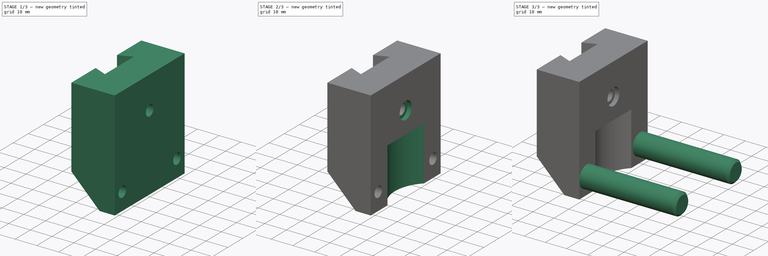
[diagram: build sequence overview — one tinted view per stage of 3, left to right]
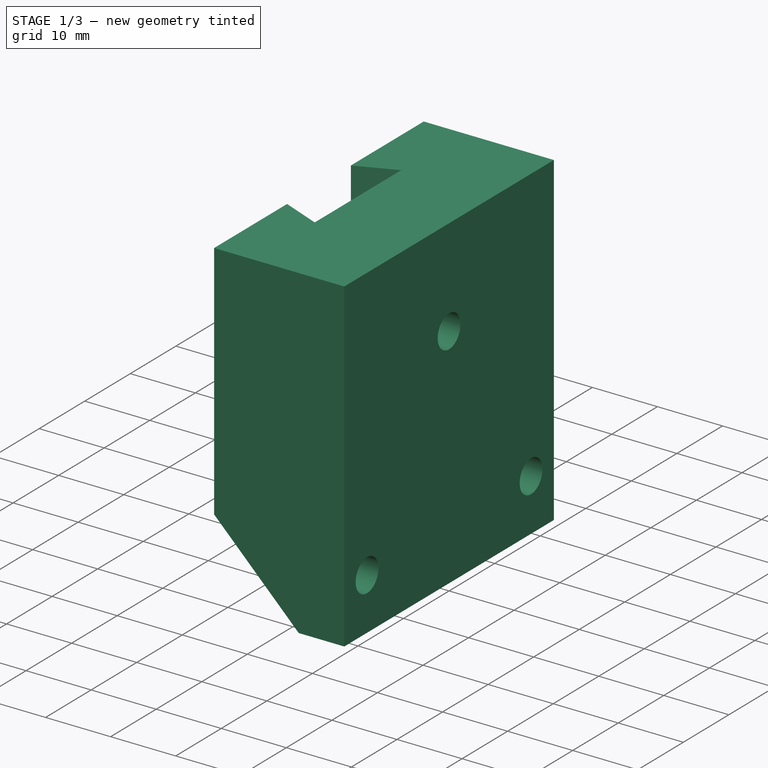
[diagram: stage 1 of 3 — iso view after this stage's code; geometry added in this stage tinted green]
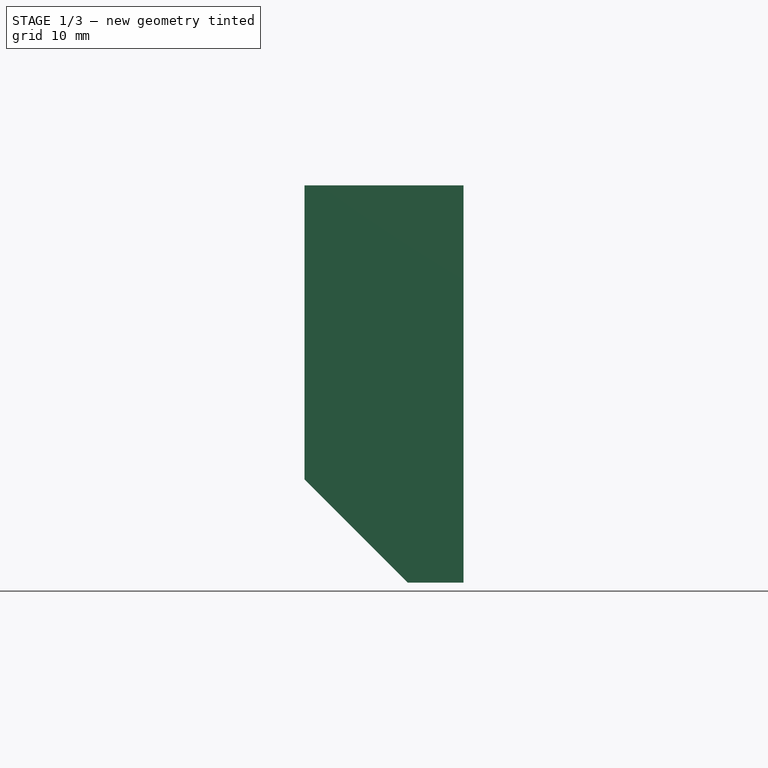
[diagram: stage 1 of 3 — front view after this stage's code; geometry added in this stage tinted green]
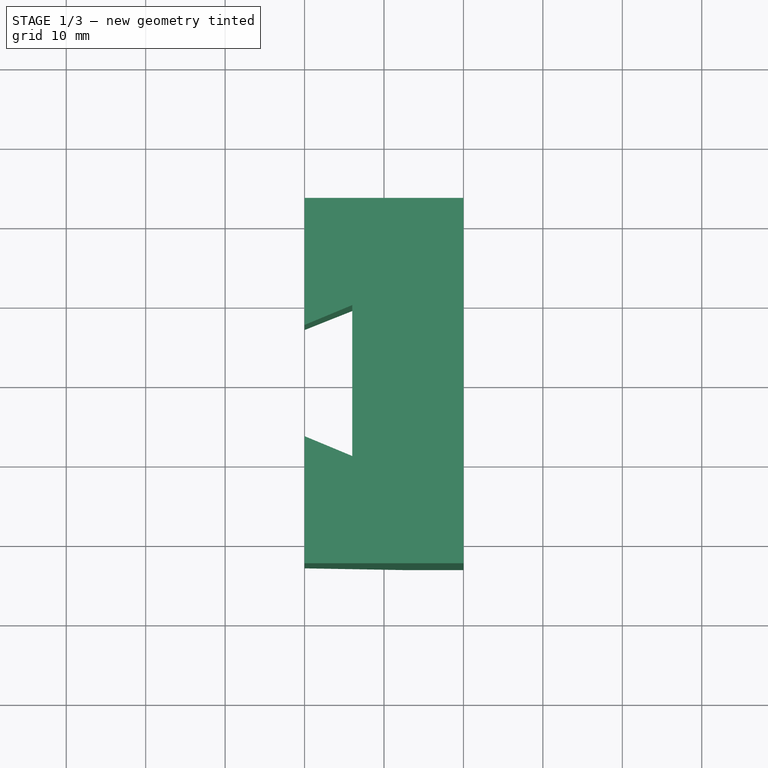
[diagram: stage 1 of 3 — top view after this stage's code; geometry added in this stage tinted green]
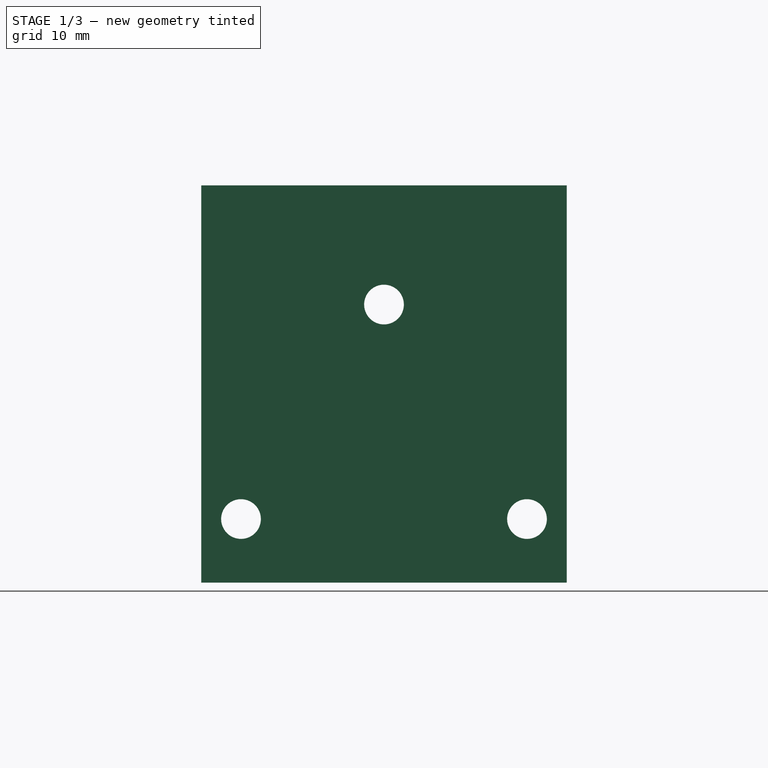
[diagram: stage 1 of 3 — right view after this stage's code; geometry added in this stage tinted green]
FCSTD DOCUMENT  (FreeCAD 0.18R16146 (Git))
Label: SlideBlock
License: All rights reserved
LicenseURL: http://en.wikipedia.org/wiki/All_rights_reserved
objects: Sketcher::SketchObject×10, PartDesign::Pocket×5, PartDesign::Plane×3, PartDesign::Pad×2, PartDesign::Chamfer×1, PartDesign::Body×1
note: 29 computed .brp shape members not serialized (recipe doc carries the construction recipe); baked Part::Feature solids carry a one-line shape summary decoded from their .brp

FEATURE [Sketcher::SketchObject] Sketch  label="MasterXY"
  MapMode = 5
  Support = -> [XY_Plane]
  sketch-geometry (9):
    g0: LineSegment StartX=-10 StartY=23 StartZ=0 EndX=10 EndY=23 EndZ=0
    g1: LineSegment StartX=10 StartY=23 StartZ=0 EndX=10 EndY=-23 EndZ=0
    g2: LineSegment StartX=10 StartY=-23 StartZ=0 EndX=-10 EndY=-23 EndZ=0
    g3: LineSegment StartX=-10 StartY=23 StartZ=0 EndX=-10 EndY=7 EndZ=0
    g4: LineSegment StartX=-10 StartY=7 StartZ=0 EndX=-4 EndY=9.5 EndZ=0
    g5: LineSegment StartX=-4 StartY=9.5 StartZ=0 EndX=-4 EndY=-9.5 EndZ=0
    g6: LineSegment StartX=-4 StartY=-9.5 StartZ=0 EndX=-10 EndY=-7 EndZ=0
    g7: LineSegment StartX=-10 StartY=-7 StartZ=0 EndX=-10 EndY=-23 EndZ=0
    g8: LineSegment [constr] StartX=61.9566 StartY=26.0146 StartZ=0 EndX=61.9566 EndY=-23.9854 EndZ=0
  constraints (22):
    c: Coincident(g0,g1)
    c: Coincident(g1,g2)
    c: Horizontal(g2)
    c: Vertical(g1)
    c: DistanceX(g0,g0) = 20  'Width'
    c: DistanceY(g1,g1) = 46
    c: Symmetric(g0,g2,g-1)
    c: Symmetric(g0,g0,g-2)
    c: Coincident(g3,g0)
    c: Vertical(g3)
    c: Coincident(g3,g4)
    c: Coincident(g4,g5)
    c: Coincident(g5,g6)
    c: Coincident(g6,g7)
    c: Coincident(g7,g2)
    c: Symmetric(g3,g6,g-1)
    c: Symmetric(g4,g5,g-1)
    c: Vertical(g8)
    c: DistanceY(g8,g8) = 50  'Length'
    c: DistanceY(g5,g4) = 19
    c: DistanceY(g6,g3) = 14
    c: DistanceX(g6,g5) = 6
FEATURE [Sketcher::SketchObject] Sketch001
  MapMode = 5
  Support = -> [XY_Plane]
  expr: Constraints[19] = Sketch.Constraints[21]
  expr: Constraints[17] = Sketch.Constraints[19]
  expr: Constraints[18] = Sketch.Constraints[20]
  expr: Constraints[5] = Sketch.Constraints[5]
  expr: Constraints.Width = Sketch.Constraints[4]
  sketch-geometry (8):
    g0: LineSegment StartX=-10 StartY=23 StartZ=0 EndX=10 EndY=23 EndZ=0
    g1: LineSegment StartX=10 StartY=23 StartZ=0 EndX=10 EndY=-23 EndZ=0
    g2: LineSegment StartX=10 StartY=-23 StartZ=0 EndX=-10 EndY=-23 EndZ=0
    g3: LineSegment StartX=-10 StartY=23 StartZ=0 EndX=-10 EndY=7 EndZ=0
    g4: LineSegment StartX=-10 StartY=7 StartZ=0 EndX=-4 EndY=9.5 EndZ=0
    g5: LineSegment StartX=-4 StartY=9.5 StartZ=0 EndX=-4 EndY=-9.5 EndZ=0
    g6: LineSegment StartX=-4 StartY=-9.5 StartZ=0 EndX=-10 EndY=-7 EndZ=0
    g7: LineSegment StartX=-10 StartY=-7 StartZ=0 EndX=-10 EndY=-23 EndZ=0
  constraints (20):
    c: Coincident(g0,g1)
    c: Coincident(g1,g2)
    c: Horizontal(g2)
    c: Vertical(g1)
    c: DistanceX(g0,g0) = 20  'Width'
    c: DistanceY(g1,g1) = 46
    c: Symmetric(g0,g2,g-1)
    c: Symmetric(g0,g0,g-2)
    c: Coincident(g3,g0)
    c: Vertical(g3)
    c: Coincident(g3,g4)
    c: Coincident(g4,g5)
    c: Coincident(g5,g6)
    c: Coincident(g6,g7)
    c: Coincident(g7,g2)
    c: Symmetric(g3,g6,g-1)
    c: Symmetric(g4,g5,g-1)
    c: DistanceY(g5,g4) = 19
    c: DistanceY(g6,g3) = 14
    c: DistanceX(g6,g5) = 6
FEATURE [PartDesign::Pad] Pad
  Length = 50
  Length2 = 100
  Midplane = true
  Profile = -> Sketch001
  Type = 0
  expr: Length = Sketch.Constraints.Length
FEATURE [Sketcher::SketchObject] Sketch002  label="MasterXZ"
  ExternalGeometry = -> [Sketch]
  MapMode = 5
  Placement = pos=(0,0,0) rot=(1,0,0;1.5708rad)
  Support = -> [XZ_Plane]
  sketch-geometry (4):
    g0: LineSegment StartX=-10 StartY=-12 StartZ=0 EndX=-10 EndY=-35.3803 EndZ=0
    g1: LineSegment StartX=-10 StartY=-35.3803 StartZ=0 EndX=13.3803 EndY=-35.3803 EndZ=0
    g2: LineSegment StartX=13.3803 StartY=-35.3803 StartZ=0 EndX=-10 EndY=-12 EndZ=0
    g3: LineSegment [constr] StartX=-10 StartY=-5.1e-15 StartZ=0 EndX=-10 EndY=-12 EndZ=0
  constraints (10):
    c: Vertical(g0)
    c: Coincident(g0,g1)
    c: Horizontal(g1)
    c: Coincident(g1,g2)
    c: Coincident(g2,g0)
    c: Equal(g0,g1)
    c: Vertical(g3)
    c: Coincident(g0,g3)
    c: DistanceY(g3,g3) = 12
    c: Coincident(g3,g-3)
FEATURE [Sketcher::SketchObject] Sketch003
  ExternalGeometry = -> [Sketch]
  MapMode = 5
  Placement = pos=(0,0,0) rot=(1,0,0;1.5708rad)
  Support = -> [XZ_Plane]
  expr: Constraints[8] = Sketch002.Constraints[8]
  sketch-geometry (4):
    g0: LineSegment StartX=-10 StartY=-12 StartZ=0 EndX=-10 EndY=-35.3803 EndZ=0
    g1: LineSegment StartX=-10 StartY=-35.3803 StartZ=0 EndX=13.3803 EndY=-35.3803 EndZ=0
    g2: LineSegment StartX=13.3803 StartY=-35.3803 StartZ=0 EndX=-10 EndY=-12 EndZ=0
    g3: LineSegment [constr] StartX=-10 StartY=-5.1e-15 StartZ=0 EndX=-10 EndY=-12 EndZ=0
  constraints (10):
    c: Vertical(g0)
    c: Coincident(g0,g1)
    c: Horizontal(g1)
    c: Coincident(g1,g2)
    c: Coincident(g2,g0)
    c: Equal(g0,g1)
    c: Vertical(g3)
    c: Coincident(g0,g3)
    c: DistanceY(g3,g3) = 12
    c: Coincident(g3,g-3)
FEATURE [PartDesign::Pocket] Pocket
  BaseFeature = -> Pad
  Length = 5
  Length2 = 100
  Midplane = true
  Profile = -> Sketch003
  Type = 1
FEATURE [Sketcher::SketchObject] Sketch004  label="MasterYZ"
  MapMode = 5
  Placement = pos=(0,0,0) rot=(0.57735,0.57735,0.57735;2.0944rad)
  Support = -> [YZ_Plane]
  sketch-geometry (8):
    g0: Circle CenterX=0 CenterY=10 CenterZ=0 NormalX=0 NormalY=0 NormalZ=1 AngleXU=0 Radius=2.5
    g1: Circle CenterX=18 CenterY=-17 CenterZ=0 NormalX=0 NormalY=0 NormalZ=1 AngleXU=0 Radius=2.5
    g2: Circle CenterX=-18 CenterY=-17 CenterZ=0 NormalX=0 NormalY=0 NormalZ=1 AngleXU=0 Radius=2.5
    g3: Circle CenterX=0 CenterY=10 CenterZ=0 NormalX=0 NormalY=0 NormalZ=1 AngleXU=0 Radius=4
    g4: Circle CenterX=-18 CenterY=-17 CenterZ=0 NormalX=0 NormalY=0 NormalZ=1 AngleXU=0 Radius=4
    g5: Circle CenterX=18 CenterY=-17 CenterZ=0 NormalX=0 NormalY=0 NormalZ=1 AngleXU=0 Radius=4
    g6: Circle CenterX=-18 CenterY=-17 CenterZ=0 NormalX=0 NormalY=0 NormalZ=1 AngleXU=0 Radius=5
    g7: Circle CenterX=18 CenterY=-17 CenterZ=0 NormalX=0 NormalY=0 NormalZ=1 AngleXU=0 Radius=5
  constraints (18):
    c: PointOnObject(g0,g-2)
    c: DistanceY(g-1,g0) = 10
    c: Diameter(g0) = 5
    c: Equal(g1,g2)
    c: Equal(g0,g1)
    c: DistanceY(g1,g-1) = 17
    c: Symmetric(g2,g1,g-2)
    c: DistanceX(g-1,g1) = 18
    c: Coincident(g3,g0)
    c: Diameter(g3) = 8
    c: Coincident(g4,g2)
    c: Coincident(g5,g1)
    c: Equal(g5,g4)
    c: Diameter(g5) = 8
    c: Coincident(g6,g2)
    c: Coincident(g7,g1)
    c: Equal(g6,g7)
    c: Diameter(g6) = 10
FEATURE [Sketcher::SketchObject] Sketch005
  MapMode = 5
  Placement = pos=(0,0,0) rot=(0.57735,0.57735,0.57735;2.0944rad)
  Support = -> [YZ_Plane]
  expr: Constraints[7] = Sketch004.Constraints[7]
  expr: Constraints[5] = Sketch004.Constraints[5]
  expr: Constraints[2] = Sketch004.Constraints[2]
  expr: Constraints[1] = Sketch004.Constraints[1]
  sketch-geometry (3):
    g0: Circle CenterX=0 CenterY=10 CenterZ=0 NormalX=0 NormalY=0 NormalZ=1 AngleXU=0 Radius=2.5
    g1: Circle CenterX=18 CenterY=-17 CenterZ=0 NormalX=0 NormalY=0 NormalZ=1 AngleXU=0 Radius=2.5
    g2: Circle CenterX=-18 CenterY=-17 CenterZ=0 NormalX=0 NormalY=0 NormalZ=1 AngleXU=0 Radius=2.5
  constraints (8):
    c: PointOnObject(g0,g-2)
    c: DistanceY(g-1,g0) = 10
    c: Diameter(g0) = 5
    c: Equal(g1,g2)
    c: Equal(g0,g1)
    c: DistanceY(g1,g-1) = 17
    c: Symmetric(g2,g1,g-2)
    c: DistanceX(g-1,g1) = 18
FEATURE [PartDesign::Pocket] Pocket001
  BaseFeature = -> Pocket
  Length = 5
  Length2 = 100
  Midplane = true
  Profile = -> Sketch005
  Type = 1
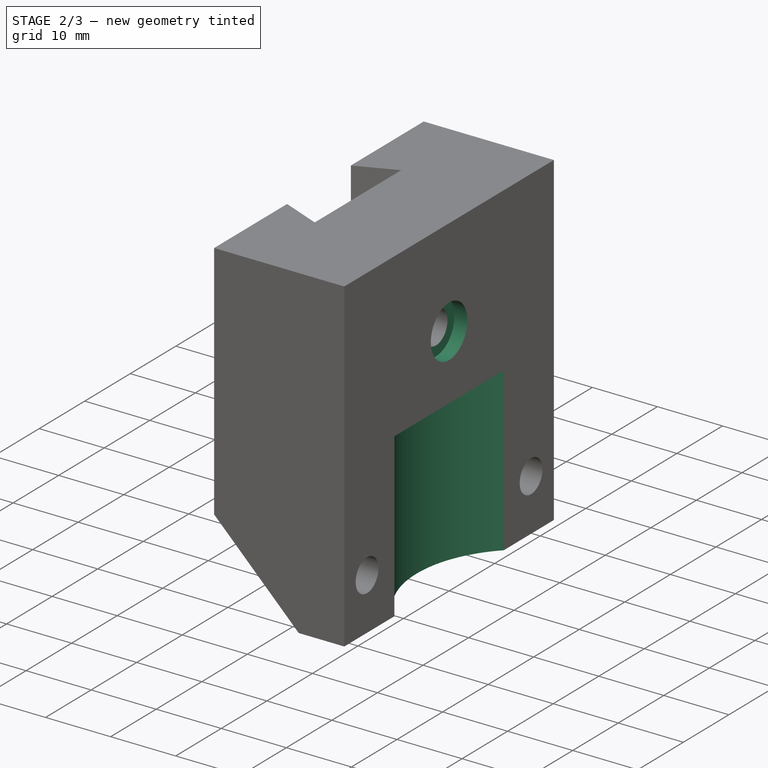
[diagram: stage 2 of 3 — iso view after this stage's code; geometry added in this stage tinted green]
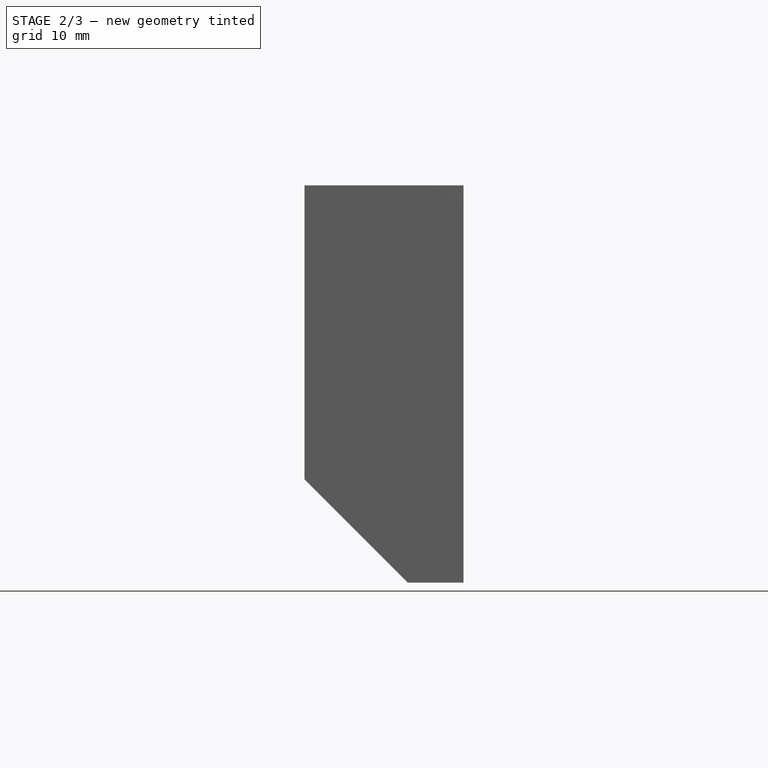
[diagram: stage 2 of 3 — front view after this stage's code; geometry added in this stage tinted green]
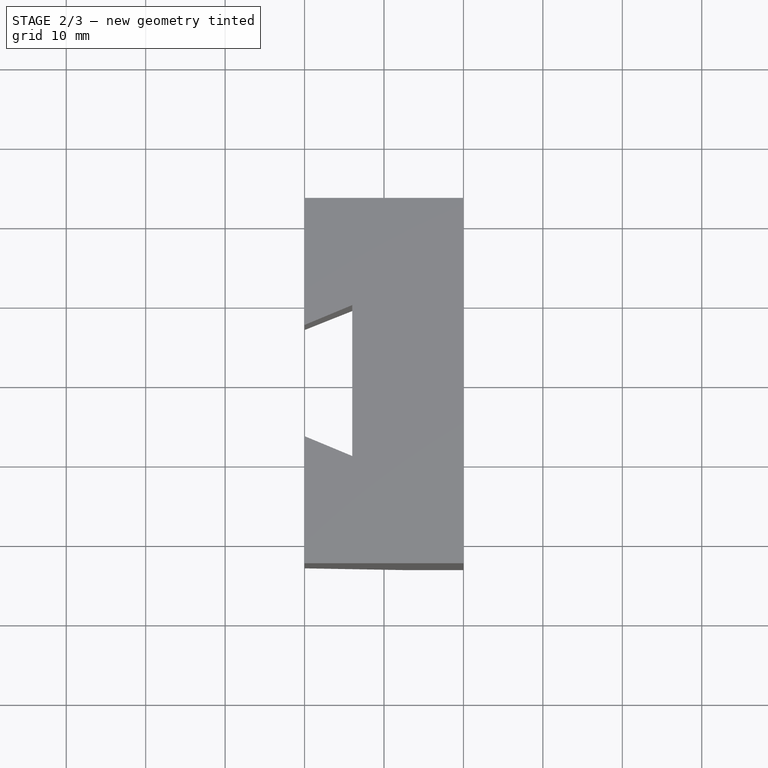
[diagram: stage 2 of 3 — top view after this stage's code; geometry added in this stage tinted green]
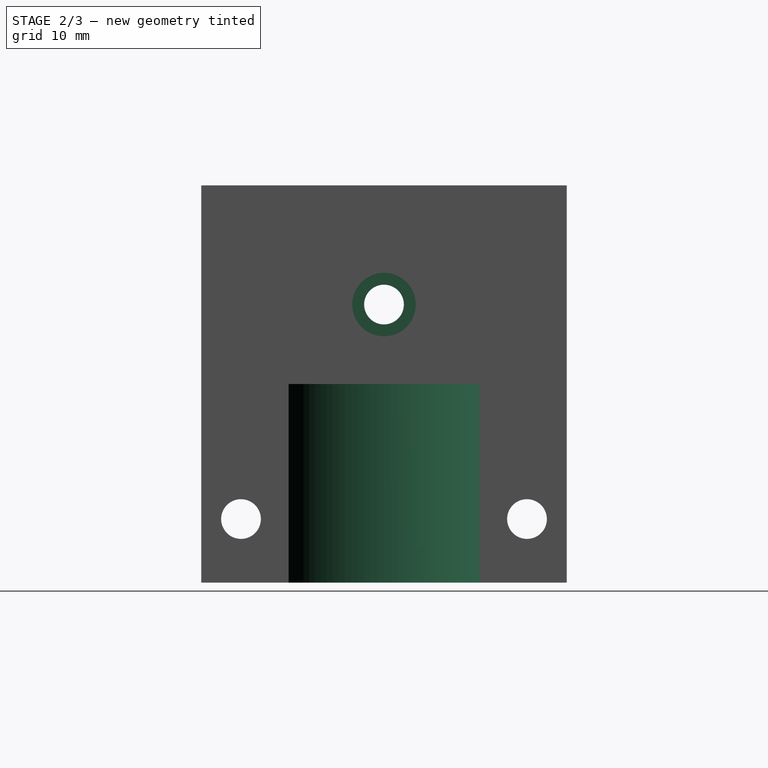
[diagram: stage 2 of 3 — right view after this stage's code; geometry added in this stage tinted green]
FEATURE [PartDesign::Plane] DatumPlane
  AttachmentOffset = pos=(0,0,-25) rot=(0,0,1;0rad)
  Length = 26.0663
  MapMode = 2
  Placement = pos=(0,0,-25) rot=(0,0,1;0rad)
  ResizeMode = 0
  Support = -> [XY_Plane]
  Width = 52.0663
  expr: AttachmentOffset.Base.z = -Sketch.Constraints.Length / 2
FEATURE [Sketcher::SketchObject] Sketch006
  ExternalGeometry = -> [Sketch]
  MapMode = 5
  Placement = pos=(0,0,-25) rot=(0,0,1;0rad)
  Support = -> [DatumPlane]
  sketch-geometry (5):
    g0: Circle CenterX=21.9 CenterY=0 CenterZ=0 NormalX=0 NormalY=0 NormalZ=1 AngleXU=0 Radius=16.9
    g1: GeomPoint X=10 Y=12 Z=0
    g2: GeomPoint X=10 Y=-12 Z=0
    g3: GeomPoint X=10 Y=0 Z=0
    g4: GeomPoint X=5 Y=0 Z=0
  constraints (11):
    c: PointOnObject(g0,g-1)
    c: PointOnObject(g1,g0)
    c: PointOnObject(g2,g0)
    c: PointOnObject(g2,g-3)
    c: PointOnObject(g1,g-3)
    c: DistanceY(g2,g1) = 24
    c: PointOnObject(g3,g-3)
    c: PointOnObject(g3,g-1)
    c: PointOnObject(g4,g0)
    c: PointOnObject(g4,g-1)
    c: DistanceX(g4,g3) = 5
FEATURE [PartDesign::Pocket] Pocket002
  BaseFeature = -> Pocket001
  Length = 25
  Length2 = 100
  Profile = -> Sketch006
  Reversed = true
  Type = 0
FEATURE [PartDesign::Plane] DatumPlane001
  AttachmentOffset = pos=(0,0,10) rot=(0,0,1;0rad)
  Length = 55.5917
  MapMode = 5
  Placement = pos=(10,-2.2e-15,2.2e-15) rot=(0.57735,0.57735,0.57735;2.0944rad)
  ResizeMode = 0
  Support = -> [YZ_Plane]
  Width = 59.5917
  expr: AttachmentOffset.Base.z = MasterXY.Constraints.Width / 2
FEATURE [Sketcher::SketchObject] Sketch007
  MapMode = 5
  Placement = pos=(10,-2.2e-15,2.2e-15) rot=(0.57735,0.57735,0.57735;2.0944rad)
  Support = -> [DatumPlane001]
  expr: Constraints[0] = Sketch004.Constraints[9]
  sketch-geometry (1):
    g0: Circle CenterX=0 CenterY=10 CenterZ=0 NormalX=0 NormalY=0 NormalZ=1 AngleXU=0 Radius=4
  constraints (1):
    c: Diameter(g0) = 8
FEATURE [PartDesign::Pocket] Pocket003
  BaseFeature = -> Pocket002
  Length = 2
  Length2 = 100
  Profile = -> Sketch007
  Type = 0
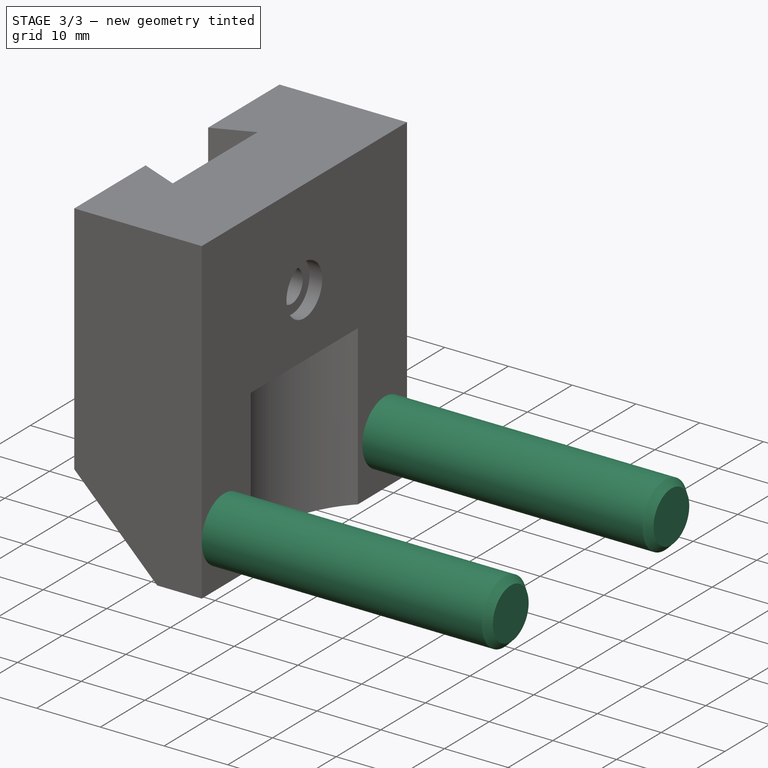
[diagram: stage 3 of 3 — iso view after this stage's code; geometry added in this stage tinted green]
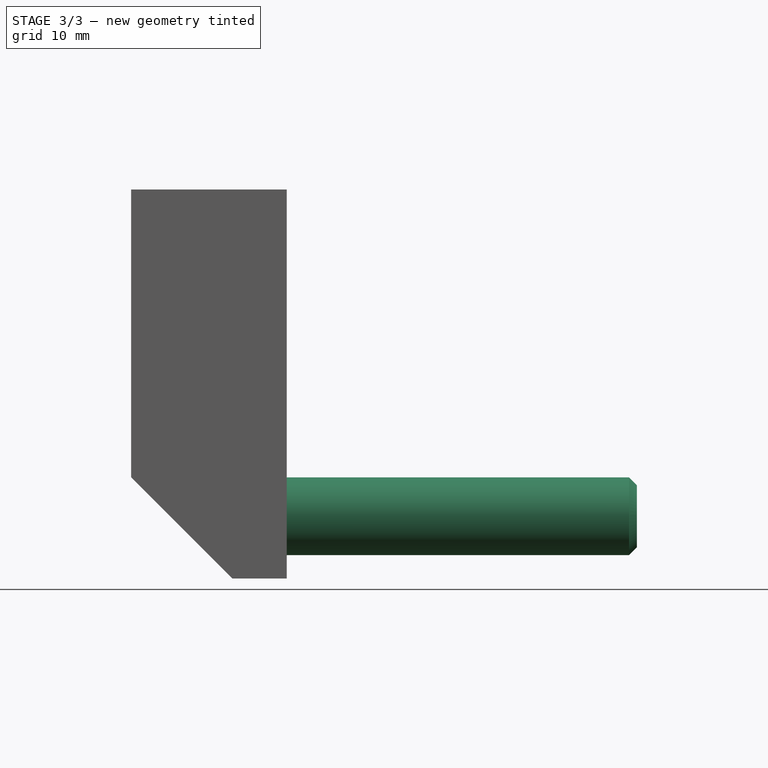
[diagram: stage 3 of 3 — front view after this stage's code; geometry added in this stage tinted green]
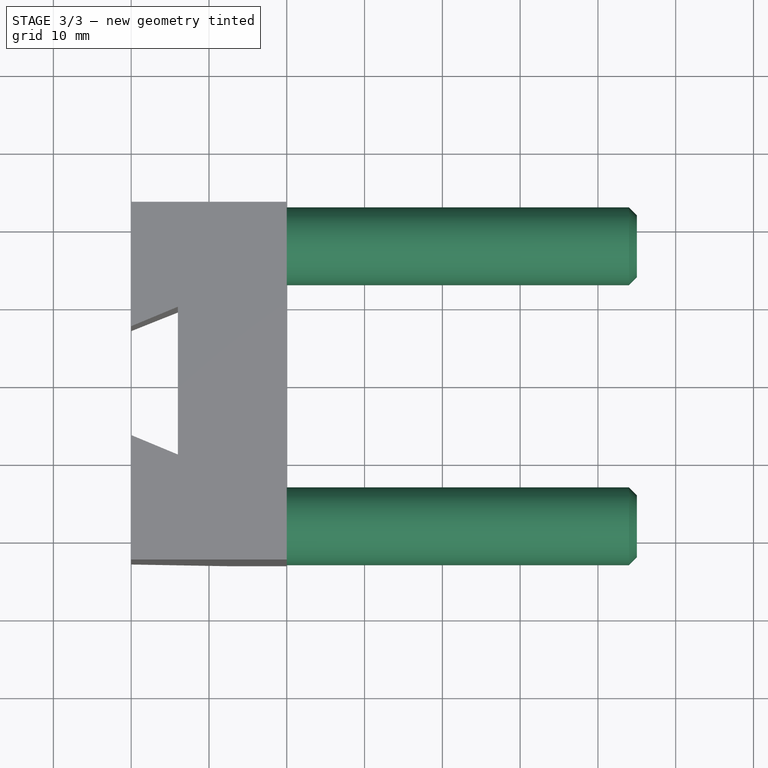
[diagram: stage 3 of 3 — top view after this stage's code; geometry added in this stage tinted green]
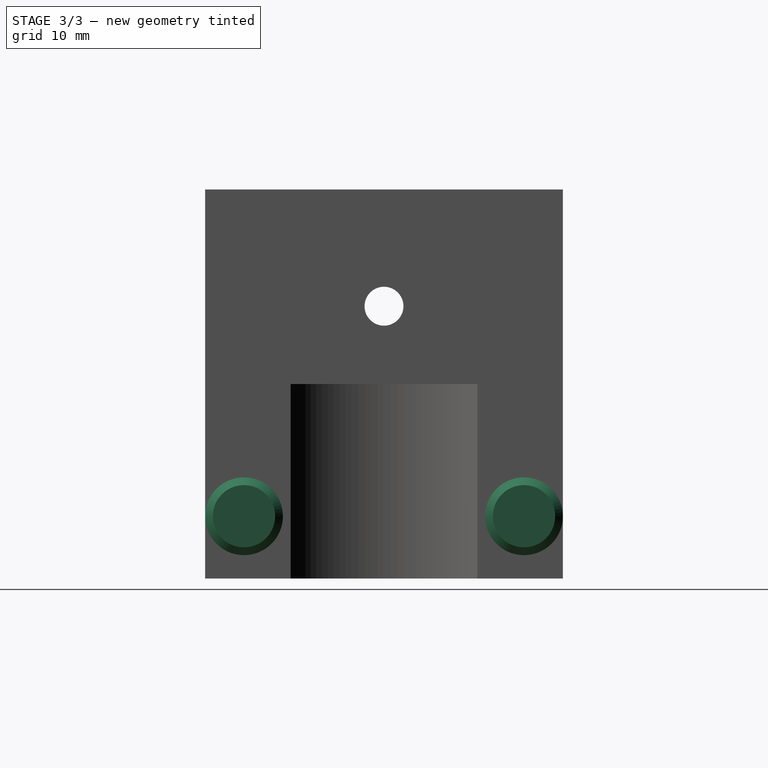
[diagram: stage 3 of 3 — right view after this stage's code; geometry added in this stage tinted green]
FEATURE [PartDesign::Plane] DatumPlane002
  AttachmentOffset = pos=(0,0,3) rot=(0,0,1;0rad)
  Length = 55.5917
  MapMode = 5
  Placement = pos=(3,-7e-16,7e-16) rot=(0.57735,0.57735,0.57735;2.0944rad)
  ResizeMode = 0
  Support = -> [YZ_Plane]
  Width = 59.5917
FEATURE [Sketcher::SketchObject] Sketch008
  MapMode = 5
  Placement = pos=(3,-7e-16,7e-16) rot=(0.57735,0.57735,0.57735;2.0944rad)
  Support = -> [DatumPlane002]
  expr: Constraints[1] = Sketch004.Constraints[13]
  sketch-geometry (2):
    g0: Circle CenterX=-18 CenterY=-17 CenterZ=0 NormalX=0 NormalY=0 NormalZ=1 AngleXU=0 Radius=4
    g1: Circle CenterX=18 CenterY=-17 CenterZ=0 NormalX=0 NormalY=0 NormalZ=1 AngleXU=0 Radius=4
  constraints (2):
    c: Equal(g1,g0)
    c: Diameter(g1) = 8
FEATURE [PartDesign::Pocket] Pocket004
  BaseFeature = -> Pocket003
  Length = 5
  Length2 = 100
  Profile = -> Sketch008
  Type = 1
FEATURE [Sketcher::SketchObject] Sketch009
  MapMode = 5
  Placement = pos=(10,-2.2e-15,2.2e-15) rot=(0.57735,0.57735,0.57735;2.0944rad)
  Support = -> [DatumPlane001]
  expr: Constraints[1] = Sketch004.Constraints[17]
  sketch-geometry (2):
    g0: Circle CenterX=-18 CenterY=-17 CenterZ=0 NormalX=0 NormalY=0 NormalZ=1 AngleXU=0 Radius=5
    g1: Circle CenterX=18 CenterY=-17 CenterZ=0 NormalX=0 NormalY=0 NormalZ=1 AngleXU=0 Radius=5
  constraints (2):
    c: Equal(g0,g1)
    c: Diameter(g0) = 10
FEATURE [PartDesign::Pad] Pad001
  BaseFeature = -> Pocket004
  Length = 45
  Length2 = 100
  Profile = -> Sketch009
  Type = 0
FEATURE [PartDesign::Chamfer] Chamfer
  Base = -> Pad001 [Edge48,Edge50]
  BaseFeature = -> Pad001
  Size = 1
FEATURE [PartDesign::Body] Body
  Group = -> [Sketch,Sketch001,Pad,Sketch002,Sketch003,Pocket,Sketch004,Sketch005,Pocket001,DatumPlane,Sketch006,Pocket002,DatumPlane001,Sketch007,Pocket003,DatumPlane002,Sketch008,Pocket004,Sketch009,Pad001,Chamfer]
  Origin = -> Origin
  Tip = -> Chamfer
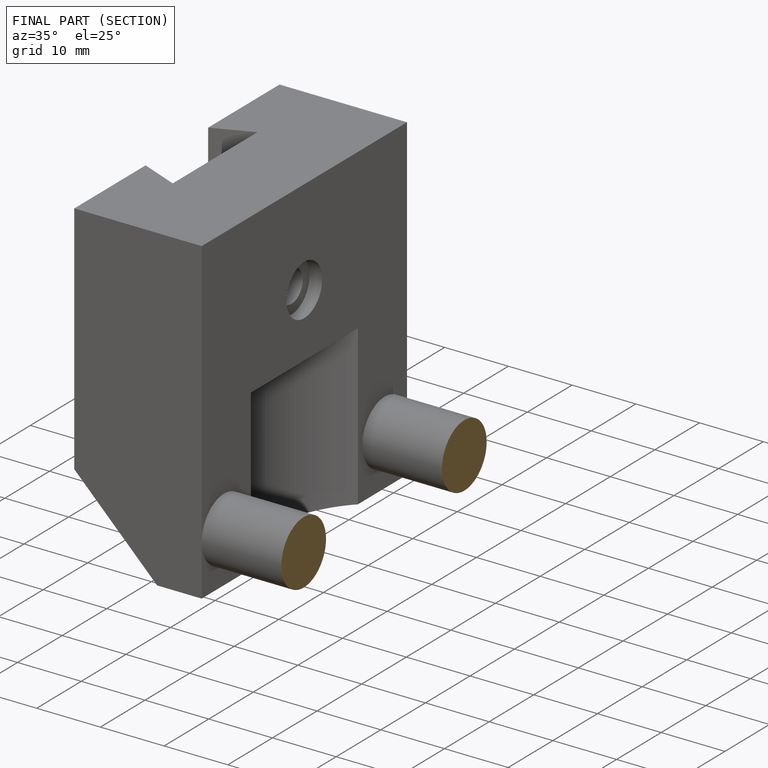
[diagram: finished part — half-section view (interior)]
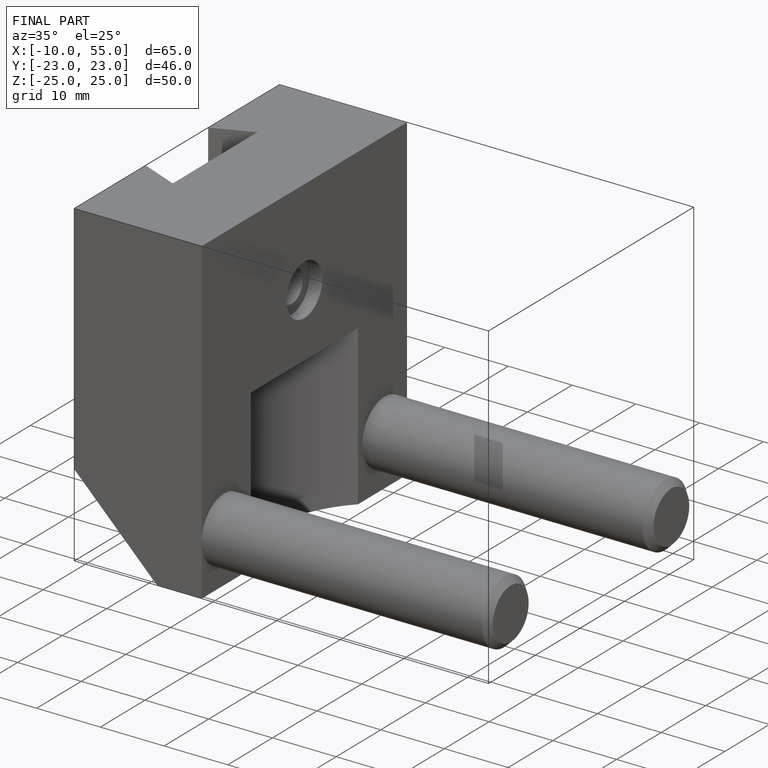
[diagram: finished part — iso view with bounding-box wireframe]
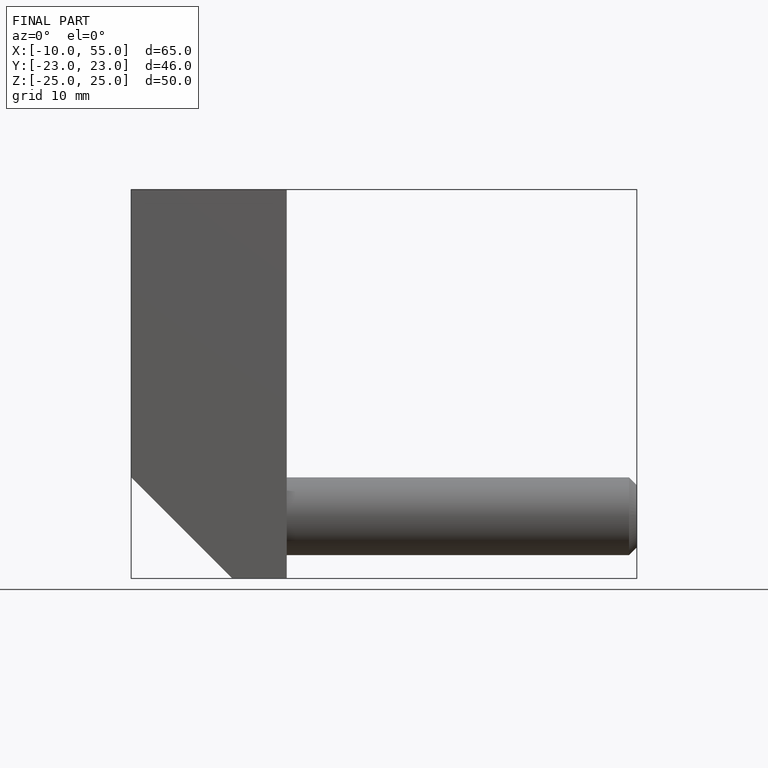
[diagram: finished part — front view with bounding-box wireframe]
